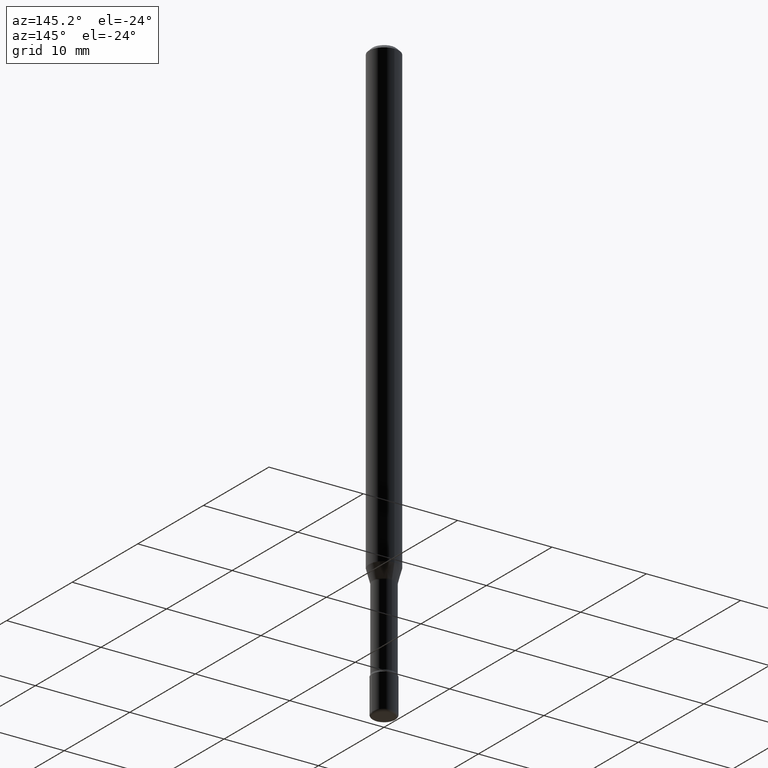
[diagram: clean part render]
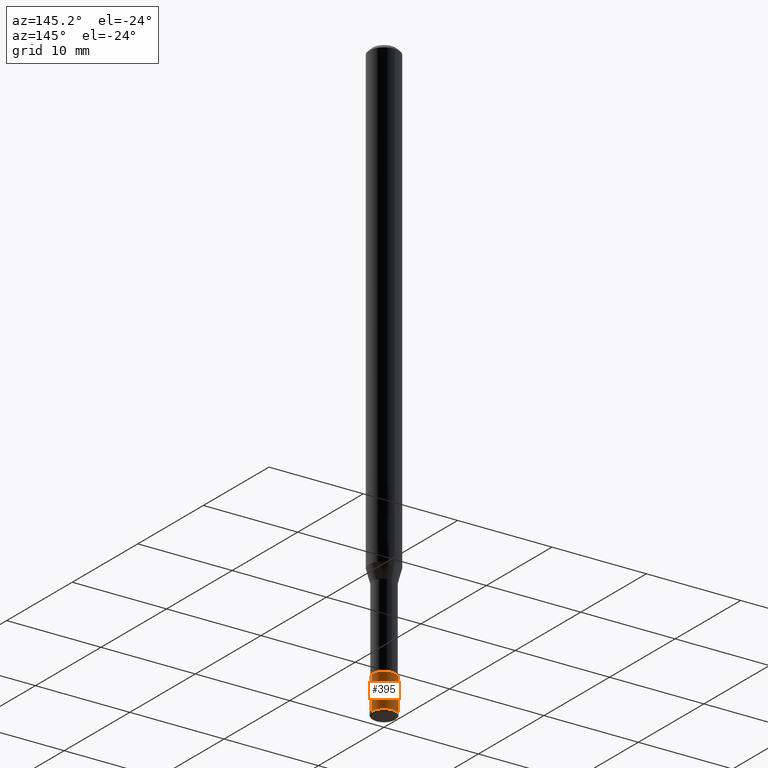
[diagram: same view with one face highlighted and labeled with its STEP entity id]
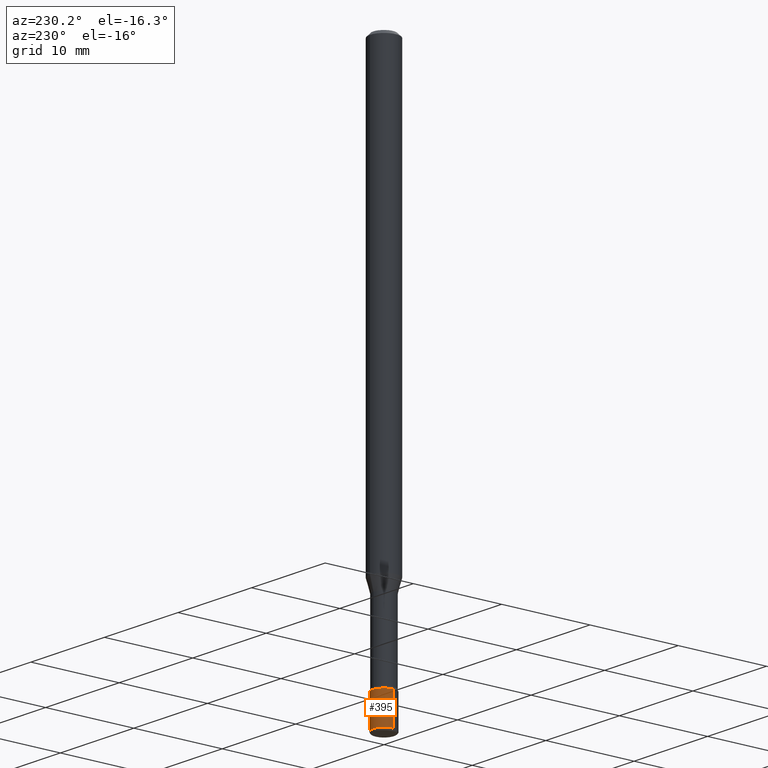
[diagram: same view with one face highlighted and labeled with its STEP entity id]
A machine part, auxiliary view. The second image highlights one B-rep face of the part: STEP entity #395.
A second angle (auxiliary view) of the same face is appended — the face is thin or edge-on in the first view.
In plain terms, the highlighted cylindrical surface (edge-blend (fillet) strip) has radius 1.27 mm, axis along (-0, 0, 1).
Its self-contained STEP definition (entity closure, byte-faithful):
#14 = CARTESIAN_POINT ( 'NONE',  ( 5.746851694535070554E-29, -8.204981146281391784E-15, -2.350000000000000089 ) ) ;
#21 = VECTOR ( 'NONE', #245, 39.37007874015748143 ) ;
#35 = DIRECTION ( 'NONE',  ( -2.445468806185136597E-29, 3.491481338843145583E-15, 1.000000000000000000 ) ) ;
#65 = AXIS2_PLACEMENT_3D ( 'NONE', #70, #559, #113 ) ;
#68 = LINE ( 'NONE', #435, #21 ) ;
#70 = CARTESIAN_POINT ( 'NONE',  ( 6.089217327400989947E-29, -8.693788533719431716E-15, -2.489999999999999769 ) ) ;
#72 = CIRCLE ( 'NONE', #111, 0.05000000000000000278 ) ;
#76 = EDGE_LOOP ( 'NONE', ( #244, #509, #163, #349 ) ) ;
#83 = CARTESIAN_POINT ( 'NONE',  ( 0.05000000000000004441, -9.042936667603745051E-15, -2.489999999999999769 ) ) ;
#85 = CIRCLE ( 'NONE', #65, 0.05000000000000000971 ) ;
#109 = DIRECTION ( 'NONE',  ( -2.445468806185136877E-29, 3.491481338843145188E-15, 1.000000000000000000 ) ) ;
#111 = AXIS2_PLACEMENT_3D ( 'NONE', #14, #322, #331 ) ;
#113 = DIRECTION ( 'NONE',  ( 1.000000000000000000, -6.982962677686273021E-15, 0.000000000000000000 ) ) ;
#123 = EDGE_CURVE ( 'NONE', #560, #505, #72, .T. ) ;
#142 = VECTOR ( 'NONE', #109, 39.37007874015748143 ) ;
#157 = CARTESIAN_POINT ( 'NONE',  ( 0.05000000000000000971, -3.491481338843134341E-16, 2.438088387897968597E-30 ) ) ;
#163 = ORIENTED_EDGE ( 'NONE', *, *, #123, .F. ) ;
#181 = CARTESIAN_POINT ( 'NONE',  ( -0.05000000000000004441, -8.338517165839381307E-15, -2.489999999999999769 ) ) ;
#210 = CYLINDRICAL_SURFACE ( 'NONE', #310, 0.05000000000000000971 ) ;
#244 = ORIENTED_EDGE ( 'NONE', *, *, #382, .T. ) ;
#245 = DIRECTION ( 'NONE',  ( -2.445468806185136877E-29, 3.491481338843145188E-15, 1.000000000000000000 ) ) ;
#247 = EDGE_CURVE ( 'NONE', #521, #560, #328, .T. ) ;
#291 = DIRECTION ( 'NONE',  ( 1.000000000000000000, -6.982962677686267499E-15, 4.876176775795936353E-29 ) ) ;
#310 = AXIS2_PLACEMENT_3D ( 'NONE', #566, #35, #291 ) ;
#322 = DIRECTION ( 'NONE',  ( -2.445468806185136597E-29, 3.491481338843145583E-15, 1.000000000000000000 ) ) ;
#328 = LINE ( 'NONE', #157, #142 ) ;
#331 = DIRECTION ( 'NONE',  ( 1.000000000000000000, -6.982962677686274599E-15, 0.000000000000000000 ) ) ;
#349 = ORIENTED_EDGE ( 'NONE', *, *, #247, .F. ) ;
#351 = CARTESIAN_POINT ( 'NONE',  ( -0.05000000000000000278, -8.094113472120361341E-15, -2.350000000000000089 ) ) ;
#382 = EDGE_CURVE ( 'NONE', #521, #523, #85, .T. ) ;
#395 = ADVANCED_FACE ( 'NONE', ( #520 ), #210, .T. ) ;
#414 = EDGE_CURVE ( 'NONE', #523, #505, #68, .T. ) ;
#435 = CARTESIAN_POINT ( 'NONE',  ( -0.05000000000000000971, 3.552713678800501620E-16, -2.459467545127453311E-30 ) ) ;
#491 = CARTESIAN_POINT ( 'NONE',  ( 0.05000000000000000278, -8.554129280165706697E-15, -2.350000000000000089 ) ) ;
#505 = VERTEX_POINT ( 'NONE', #351 ) ;
#509 = ORIENTED_EDGE ( 'NONE', *, *, #414, .T. ) ;
#520 = FACE_OUTER_BOUND ( 'NONE', #76, .T. ) ;
#521 = VERTEX_POINT ( 'NONE', #83 ) ;
#523 = VERTEX_POINT ( 'NONE', #181 ) ;
#559 = DIRECTION ( 'NONE',  ( -2.445468806185136597E-29, 3.491481338843145583E-15, 1.000000000000000000 ) ) ;
#560 = VERTEX_POINT ( 'NONE', #491 ) ;
#566 = CARTESIAN_POINT ( 'NONE',  ( 0.000000000000000000, 0.000000000000000000, 0.000000000000000000 ) ) ;